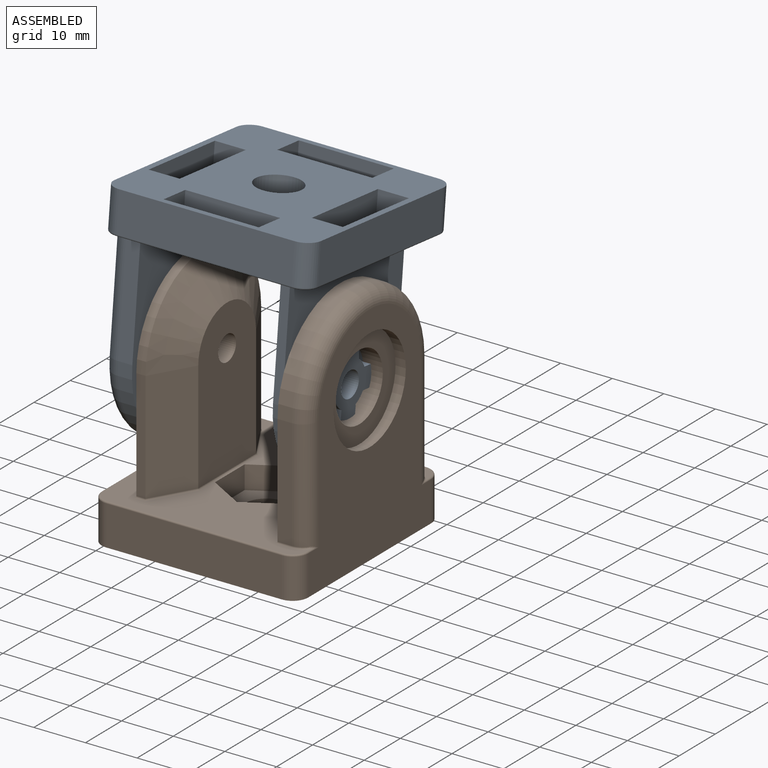
[diagram: assembled view]
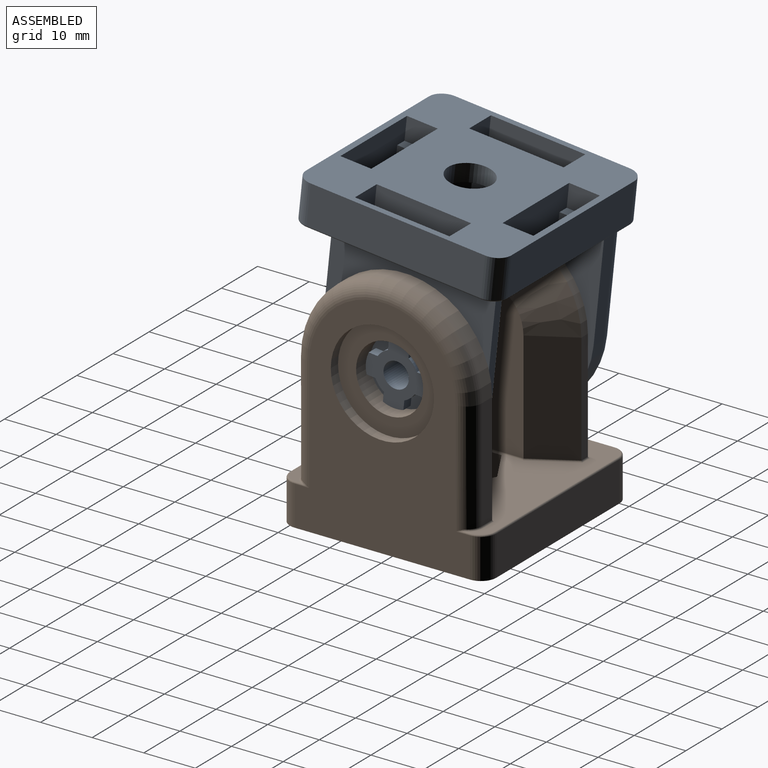
[diagram: assembled view, second angle]
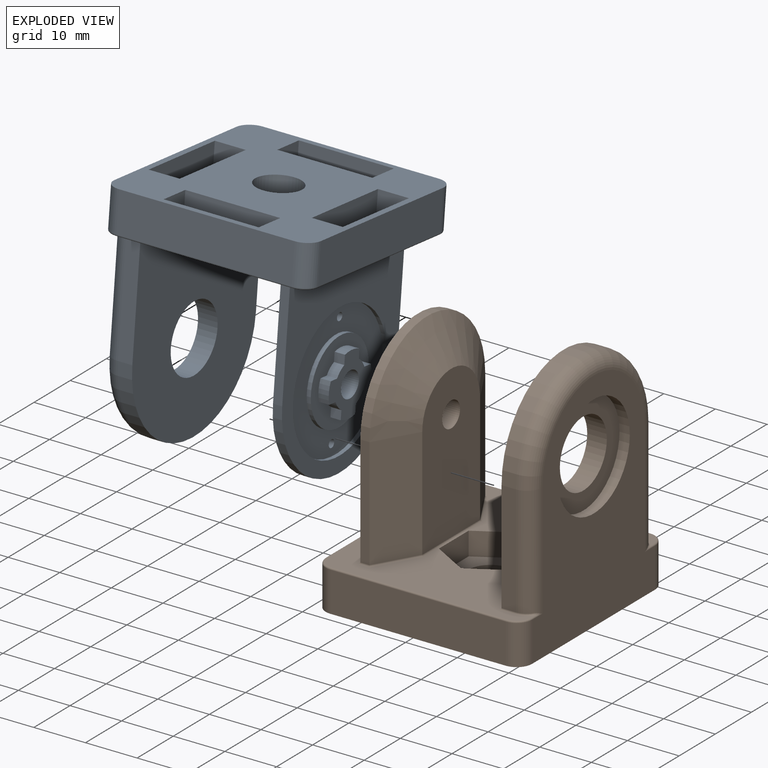
[diagram: exploded view]
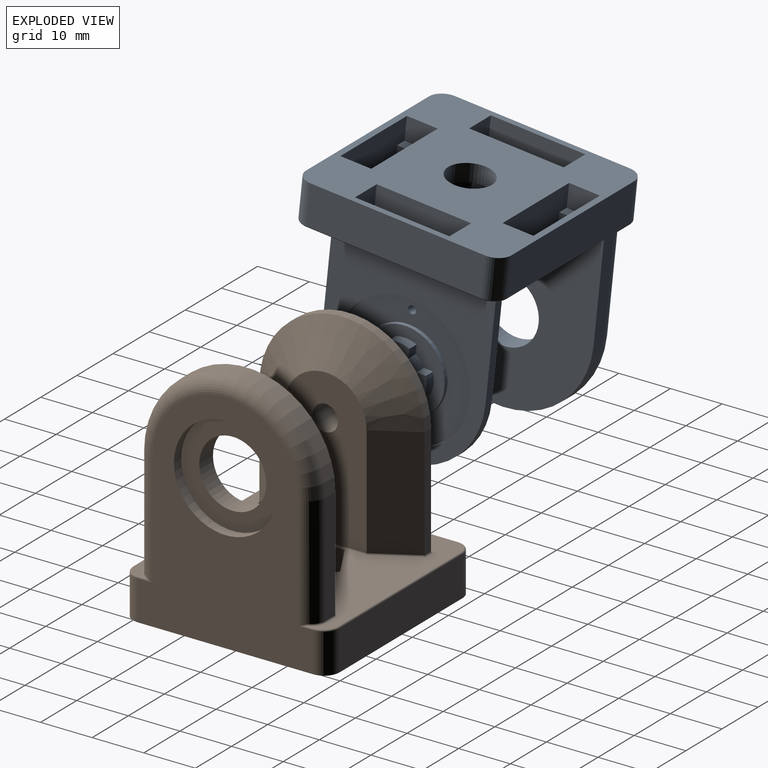
[diagram: exploded view, second angle]
ASSEMBLY  parts=2 mates=2
PART A: 120 faces, bbox 40.5x40.5x48.4 mm
  f0: cylinder r=0.3mm len=3.1mm, axis (1,0,0), area 1.4mm2, adj f4,f5,f8,f21
  f1: bspline ~1.9x0.6mm, area 0.3mm2, adj f2,f11,f12
  f2: torus R=3.3mm, axis (0,0,1), area 1.4mm2, adj f1,f3,f11,f21
  f3: cylinder r=0.3mm len=3.1mm, axis (-1,0,0), area 1.4mm2, adj f2,f4,f10,f21
  f4: cylinder r=0.3mm len=35mm, axis (0,1,0), area 16.4mm2, adj f0,f3,f9,f21
  f5: torus R=3.3mm, axis (0,0,1), area 1.4mm2, adj f0,f6,f7,f21
  f6: bspline ~1.9x0.6mm, area 0.3mm2, adj f5,f7,f20
  f7: cylinder r=3mm len=22.1mm, axis (0,0,1), area 101.9mm2, adj f5,f6,f8,f103,f119
  f8: plane 21.5x2.8mm, normal (0,1,0), area 60.2mm2, adj f0,f7,f9,f104
  f9: plane 38.7x34.4mm, normal (-1,0,0), area 1071.6mm2, adj f4,f8,f10,f104,f107
  f10: plane 21.5x2.8mm, normal (0,-1,0), area 60.2mm2, adj f3,f9,f11,f104
  f11: cylinder r=3mm len=22.1mm, axis (0,0,-1), area 101.9mm2, adj f1,f2,f10,f103,f119
  f12: cylinder r=0.3mm len=2.8mm, axis (0,-1,0), area 0.9mm2, adj f1,f13,f21,f119
  f13: torus R=2.7mm, axis (0,0,-1), area 2.1mm2, adj f12,f14,f21,f70
  f14: cylinder r=0.3mm len=34mm, axis (-1,0,0), area 16mm2, adj f13,f15,f21,f71
  f15: torus R=2.7mm, axis (0,0,-1), area 2.1mm2, adj f14,f16,f21,f72
  f16: cylinder r=0.3mm len=34mm, axis (0,1,0), area 16mm2, adj f15,f17,f21,f118
  f17: torus R=2.7mm, axis (0,0,-1), area 2.1mm2, adj f16,f18,f21,f73
  f18: cylinder r=0.3mm len=34mm, axis (1,0,0), area 16mm2, adj f17,f19,f21,f68
  f19: torus R=2.7mm, axis (0,0,-1), area 2.1mm2, adj f18,f20,f21,f67
  f20: cylinder r=0.3mm len=2.8mm, axis (0,1,0), area 0.9mm2, adj f6,f19,f21,f119
  f21: plane 39.4x39.4mm, normal (0,0,1), area 981.5mm2, adj f0,f2,f3,f4,f5,f12,f13,f14
  f22: cylinder r=0.3mm len=2.25mm, axis (1,0,0), area 1mm2, adj f21,f26,f27,f28
  f23: cylinder r=0.3mm len=2.25mm, axis (-1,0,0), area 1mm2, adj f21,f24,f26,f30
  f24: cylinder r=0.3mm len=8.37mm, axis (0.5,0.87,0), area 4.4mm2, adj f21,f23,f25,f99
  f25: cylinder r=0.3mm len=16.16mm, axis (0,-1,0), area 7.6mm2, adj f21,f24,f27,f102
  f26: cylinder r=0.3mm len=32.6mm, axis (0,1,0), area 15.2mm2, adj f21,f22,f23,f29
  f27: cylinder r=0.3mm len=8.37mm, axis (-0.5,0.87,0), area 4.4mm2, adj f21,f22,f25,f101
  f28: plane 21.5x1.78mm, normal (0,1,0), area 38.3mm2, adj f22,f29,f101,f115
  f29: plane 37.5x32mm, normal (-1,0,0), area 559.2mm2, adj f26,f28,f30,f97,f115
  f30: plane 21.5x1.78mm, normal (0,-1,0), area 38.3mm2, adj f23,f29,f99,f115
  f31: plane 6x2.5mm, normal (0,-1,0), area 15mm2, adj f33,f36,f38,f39
  f32: plane 6x2.5mm, normal (0,1,0), area 15mm2, adj f33,f34,f36,f38
  f33: plane 14.4x6mm, normal (0,0,-1), area 86.4mm2, adj f31,f32,f36,f38
  f34: plane 6x2mm, normal (0,0,-1), area 12mm2, adj f32,f36,f37,f38
  f35: plane 6x4.5mm, normal (0,-1,0), area 27mm2, adj f36,f38,f39,f69
  f36: plane 18.4x7mm, normal (-1,0,0), area 118.8mm2, adj f31,f32,f33,f34,f35,f37,f39,f69
  f37: plane 6x4.5mm, normal (0,1,0), area 27mm2, adj f34,f36,f38,f69
  f38: plane 18.4x7mm, normal (1,0,0), area 118.8mm2, adj f31,f32,f33,f34,f35,f37,f39,f69
  f39: plane 6x2mm, normal (0,0,-1), area 12mm2, adj f31,f35,f36,f38
  f40: plane 6x2.5mm, normal (-1,0,0), area 15mm2, adj f42,f45,f47,f48
  f41: plane 6x2.5mm, normal (1,0,0), area 15mm2, adj f42,f43,f45,f47
  f42: plane 14.4x6mm, normal (0,0,-1), area 86.4mm2, adj f40,f41,f45,f47
  f43: plane 6x2mm, normal (0,0,-1), area 12mm2, adj f41,f45,f46,f47
  f44: plane 6x4.5mm, normal (-1,0,0), area 27mm2, adj f45,f47,f48,f69
  f45: plane 18.4x7mm, normal (0,1,0), area 118.8mm2, adj f40,f41,f42,f43,f44,f46,f48,f69
  f46: plane 6x4.5mm, normal (1,0,0), area 27mm2, adj f43,f45,f47,f69
  f47: plane 18.4x7mm, normal (0,-1,0), area 118.8mm2, adj f40,f41,f42,f43,f44,f46,f48,f69
  f48: plane 6x2mm, normal (0,0,-1), area 12mm2, adj f40,f44,f45,f47
  f49: plane 6x2.5mm, normal (0,1,0), area 15mm2, adj f51,f54,f56,f57
  f50: plane 6x2.5mm, normal (0,-1,0), area 15mm2, adj f51,f52,f54,f56
  f51: plane 14.4x6mm, normal (0,0,-1), area 86.4mm2, adj f49,f50,f54,f56
  f52: plane 6x2mm, normal (0,0,-1), area 12mm2, adj f50,f54,f55,f56
  f53: plane 6x4.5mm, normal (0,1,0), area 27mm2, adj f54,f56,f57,f69
  f54: plane 18.4x7mm, normal (1,0,0), area 118.8mm2, adj f49,f50,f51,f52,f53,f55,f57,f69
  f55: plane 6x4.5mm, normal (0,-1,0), area 27mm2, adj f52,f54,f56,f69
  f56: plane 18.4x7mm, normal (-1,0,0), area 118.8mm2, adj f49,f50,f51,f52,f53,f55,f57,f69
  f57: plane 6x2mm, normal (0,0,-1), area 12mm2, adj f49,f53,f54,f56
  f58: plane 6x2.5mm, normal (1,0,0), area 15mm2, adj f60,f61,f63,f65
  f59: plane 6x2.5mm, normal (-1,0,0), area 15mm2, adj f60,f63,f65,f66
  f60: plane 14.4x6mm, normal (0,0,-1), area 86.4mm2, adj f58,f59,f63,f65
  f61: plane 6x2mm, normal (0,0,-1), area 12mm2, adj f58,f62,f63,f65
  f62: plane 6x4.5mm, normal (1,0,0), area 27mm2, adj f61,f63,f65,f69
  f63: plane 18.4x7mm, normal (0,-1,0), area 118.8mm2, adj f58,f59,f60,f61,f62,f64,f66,f69
  f64: plane 6x4.5mm, normal (-1,0,0), area 27mm2, adj f63,f65,f66,f69
  f65: plane 18.4x7mm, normal (0,1,0), area 118.8mm2, adj f58,f59,f60,f61,f62,f64,f66,f69
  f66: plane 6x2mm, normal (0,0,-1), area 12mm2, adj f59,f63,f64,f65
  f67: cylinder r=3mm len=7.7mm, axis (0,0,1), area 36.3mm2, adj f19,f68,f69,f119
  f68: plane 34x7.7mm, normal (0,1,0), area 261.8mm2, adj f18,f67,f69,f73
  f69: plane 40x40mm, normal (0,0,-1), area 1093.9mm2, adj f35,f36,f37,f38,f44,f45,f46,f47
  f70: cylinder r=3mm len=7.7mm, axis (0,0,1), area 36.3mm2, adj f13,f69,f71,f119
  f71: plane 34x7.7mm, normal (0,-1,0), area 261.8mm2, adj f14,f69,f70,f72
  f72: cylinder r=3mm len=7.7mm, axis (0,0,1), area 36.3mm2, adj f15,f69,f71,f118
  f73: cylinder r=3mm len=7.7mm, axis (0,0,1), area 36.3mm2, adj f17,f68,f69,f118
  f74: cylinder r=0.75mm len=1.6mm, axis (1,0,0), area 7.5mm2, adj f75,f98
  f75: plane 1.5x1.5mm, normal (-1,0,0), area 1.8mm2, adj f74
  f76: cylinder r=0.75mm len=1.6mm, axis (1,0,0), area 7.5mm2, adj f77,f98
  f77: plane 1.5x1.5mm, normal (-1,0,0), area 1.8mm2, adj f76
  f78: cylinder r=2.46mm len=8.4mm, axis (-1,0,0), area 129.8mm2, adj f95,f102
  f79: cylinder r=5.9mm len=4mm, axis (-1,0,0), area 8.2mm2, adj f80,f94,f95,f116
  f80: plane 2x1.74mm, normal (0,0,1), area 3.5mm2, adj f79,f81,f95,f116
  f81: cylinder r=4.3mm len=2mm, axis (-1,0,0), area 5.2mm2, adj f80,f82,f95,f116
  f82: plane 2x1.74mm, normal (0,1,0), area 3.5mm2, adj f81,f83,f95,f116
  f83: cylinder r=5.9mm len=4mm, axis (-1,0,0), area 8.2mm2, adj f82,f84,f95,f116
  f84: plane 2x1.74mm, normal (0,-1,0), area 3.5mm2, adj f83,f85,f95,f116
  f85: cylinder r=4.3mm len=2mm, axis (-1,0,0), area 5.2mm2, adj f84,f86,f95,f116
  f86: plane 2x1.74mm, normal (0,0,1), area 3.5mm2, adj f85,f87,f95,f116
  f87: cylinder r=5.9mm len=4mm, axis (-1,0,0), area 8.2mm2, adj f86,f88,f95,f116
  f88: plane 2x1.74mm, normal (0,0,-1), area 3.5mm2, adj f87,f89,f95,f116
  f89: cylinder r=4.3mm len=2mm, axis (-1,0,0), area 5.2mm2, adj f88,f90,f95,f116
  f90: plane 2x1.74mm, normal (0,-1,0), area 3.5mm2, adj f89,f91,f95,f116
  f91: cylinder r=5.9mm len=4mm, axis (-1,0,0), area 8.2mm2, adj f90,f92,f95,f116
  f92: plane 2x1.74mm, normal (0,1,0), area 3.5mm2, adj f91,f93,f95,f116
  f93: cylinder r=4.3mm len=2mm, axis (-1,0,0), area 5.2mm2, adj f92,f94,f95,f116
  f94: plane 2x1.74mm, normal (0,0,-1), area 3.5mm2, adj f79,f93,f95,f116
  f95: plane 11.8x11.8mm, normal (-1,0,0), area 65.4mm2, adj f78,f79,f80,f81,f82,f83,f84,f85
  f96: cylinder r=8mm len=16mm, axis (1,0,0), area 40.2mm2, adj f98,f116
  f97: cylinder r=13mm len=26mm, axis (1,0,0), area 65.3mm2, adj f29,f98
  f98: plane 26x26mm, normal (-1,0,0), area 326.3mm2, adj f74,f76,f96,f97
  f99: plane 21.5x8mm, normal (0.87,-0.5,0), area 198.6mm2, adj f24,f30,f100,f102
  f100: cone r=12mm half-angle=60deg, axis (-1,0,0), area 348.2mm2, adj f99,f101,f102,f115
  f101: plane 21.5x8mm, normal (0.87,0.5,0), area 198.6mm2, adj f27,f28,f100,f102
  f102: plane 29.5x16mm, normal (1,0,0), area 425.5mm2, adj f25,f78,f99,f100,f101
  f103: torus R=14.2mm, axis (1,0,0), area 238.5mm2, adj f7,f11,f104,f119
  f104: cylinder r=17.2mm len=34.4mm, axis (-1,0,0), area 151.3mm2, adj f8,f9,f10,f103
  f105: plane 20x20mm, normal (1,0,0), area 181.4mm2, adj f106,f107
  f106: cylinder r=10mm len=20mm, axis (1,0,0), area 125.7mm2, adj f105,f119
  f107: cylinder r=6.5mm len=13mm, axis (1,0,0), area 155.2mm2, adj f9,f105
  f108: plane 7.1x4.5mm, normal (-0.5,-0.87,0), area 36.9mm2, adj f21,f109,f113,f114
  f109: plane 7.1x4.5mm, normal (0.5,-0.87,0), area 36.9mm2, adj f21,f108,f110,f114
  f110: plane 8.2x4.5mm, normal (1,0,0), area 36.9mm2, adj f21,f109,f111,f114
  f111: plane 7.1x4.5mm, normal (0.5,0.87,0), area 36.9mm2, adj f21,f110,f112,f114
  f112: plane 7.1x4.5mm, normal (-0.5,0.87,0), area 36.9mm2, adj f21,f111,f113,f114
  f113: plane 8.2x4.5mm, normal (-1,0,0), area 36.9mm2, adj f21,f108,f112,f114
  f114: plane 16.4x14.2mm, normal (0,0,1), area 117.9mm2, adj f108,f109,f110,f111,f112,f113,f117
  f115: cylinder r=16mm len=32mm, axis (1,0,0), area 89.5mm2, adj f28,f29,f30,f100
  f116: plane 16x16mm, normal (-1,0,0), area 116.6mm2, adj f79,f80,f81,f82,f83,f84,f85,f86
  f117: cylinder r=4.25mm len=8.5mm, axis (0,0,1), area 93.5mm2, adj f69,f114
  f118: plane 34x7.7mm, normal (-1,0,0), area 261.8mm2, adj f16,f69,f72,f73
  f119: plane 44x34mm, normal (1,0,0), area 892mm2, adj f7,f11,f12,f20,f67,f69,f70,f103
PART B: same geometry as A
PLACE A rot(axis=(0,1,-0.05),180deg) t=(19.45,42.83,67.76)mm
PLACE B t=(19.25,39.69,8.32)mm fixed
MATE cylindrical A.f79 <-> B.f79  axis (-1,0,0) through (1.45,39.69,38.12)mm
MATE planar A.f29 <-> B.f79  axis (1,0,0) through (33.45,26.05,61.19)mm
